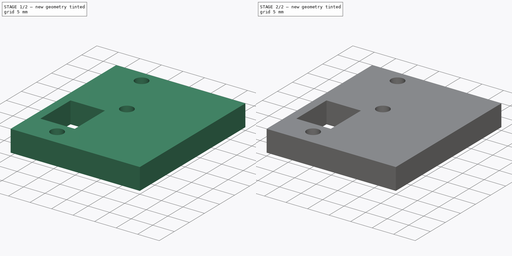
[diagram: build sequence overview — one tinted view per stage of 2, left to right]
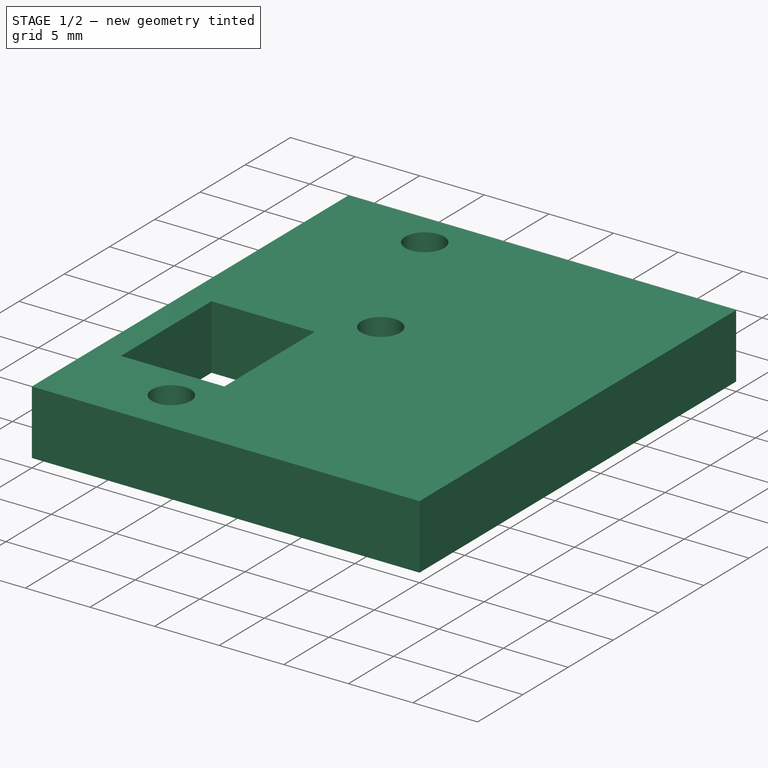
[diagram: stage 1 of 2 — iso view after this stage's code; geometry added in this stage tinted green]
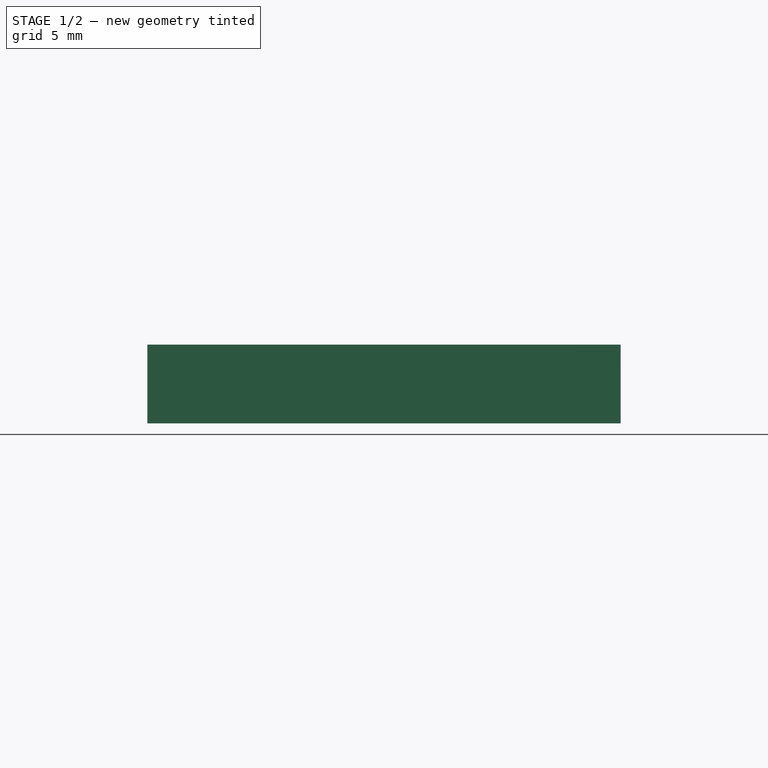
[diagram: stage 1 of 2 — front view after this stage's code; geometry added in this stage tinted green]
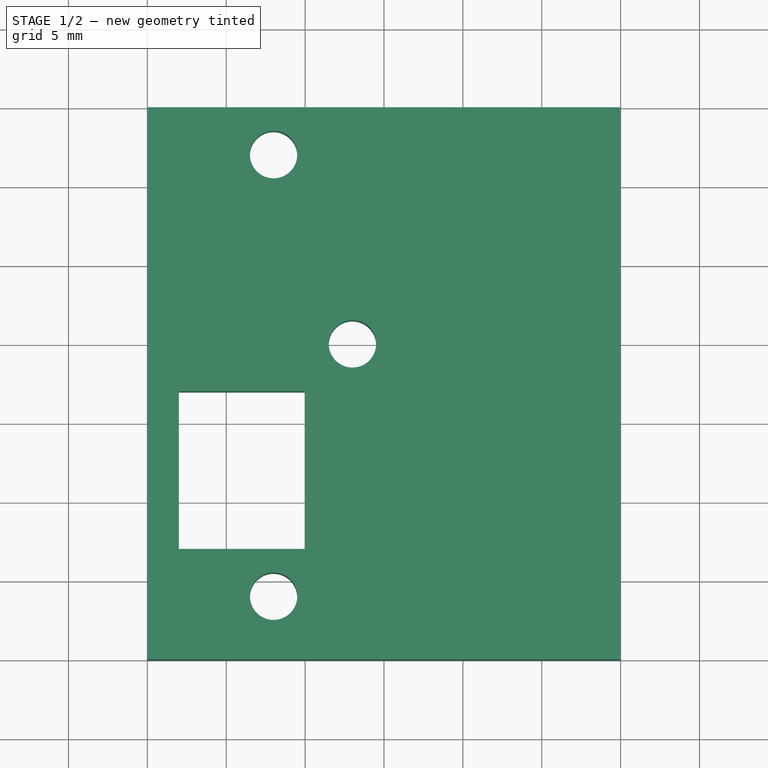
[diagram: stage 1 of 2 — top view after this stage's code; geometry added in this stage tinted green]
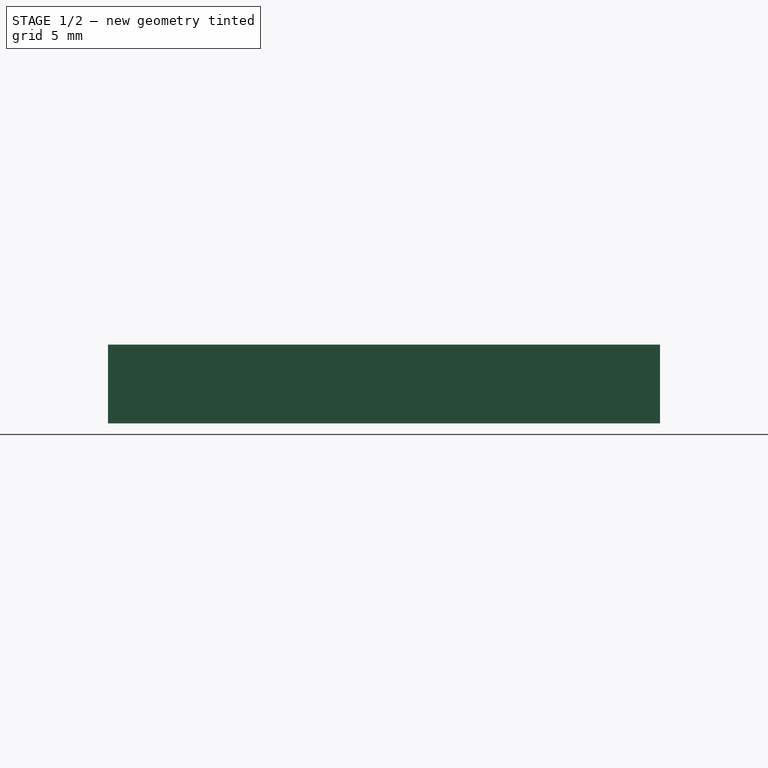
[diagram: stage 1 of 2 — right view after this stage's code; geometry added in this stage tinted green]
FCSTD DOCUMENT  (FreeCAD 0.16R6706 (Git))
Label: Soporte_Razor
License: All rights reserved
LicenseURL: http://en.wikipedia.org/wiki/All_rights_reserved
objects: Sketcher::SketchObject×3, PartDesign::Pocket×2, PartDesign::Pad×1
note: 9 computed .brp shape members not serialized (recipe doc carries the construction recipe); baked Part::Feature solids carry a one-line shape summary decoded from their .brp

FEATURE [Sketcher::SketchObject] Sketch  label="Base"
  sketch-geometry (4):
    g0: LineSegment StartX=0 StartY=35 StartZ=0 EndX=30 EndY=35 EndZ=0
    g1: LineSegment StartX=30 StartY=35 StartZ=0 EndX=30 EndY=0 EndZ=0
    g2: LineSegment StartX=30 StartY=0 StartZ=0 EndX=0 EndY=0 EndZ=0
    g3: LineSegment StartX=0 StartY=0 StartZ=0 EndX=0 EndY=35 EndZ=0
  constraints (11):
    c: Coincident(g0,g1)
    c: Coincident(g1,g2)
    c: Coincident(g2,g3)
    c: Coincident(g3,g0)
    c: Horizontal(g0)
    c: Horizontal(g2)
    c: Vertical(g1)
    c: Vertical(g3)
    c: DistanceX(g0,g0) = 30
    c: DistanceY(g3,g3) = 35
    c: Coincident(g2,g-1)
FEATURE [PartDesign::Pad] Pad
  Length = 5
  Length2 = 100
  Sketch = -> Sketch
  Type = 0
FEATURE [Sketcher::SketchObject] Sketch001  label="Base_Tornillos"
  Placement = pos=(0,0,5) rot=(0,0,1;0rad)
  Support = -> Pad [Face6]
  sketch-geometry (7):
    g0: Circle CenterX=8 CenterY=32 CenterZ=0 NormalX=0 NormalY=0 NormalZ=1 Radius=1.5
    g1: Circle CenterX=8 CenterY=4 CenterZ=0 NormalX=0 NormalY=0 NormalZ=1 Radius=1.5
    g2: LineSegment StartX=2 StartY=17 StartZ=0 EndX=10 EndY=17 EndZ=0
    g3: LineSegment StartX=10 StartY=17 StartZ=0 EndX=10 EndY=7 EndZ=0
    g4: LineSegment StartX=10 StartY=7 StartZ=0 EndX=2 EndY=7 EndZ=0
    g5: LineSegment StartX=2 StartY=7 StartZ=0 EndX=2 EndY=17 EndZ=0
    g6: Circle CenterX=13 CenterY=20 CenterZ=0 NormalX=0 NormalY=0 NormalZ=1 Radius=1.5
  constraints (21):
    c: Radius(g0) = 1.5
    c: Radius(g1) = 1.5
    c: DistanceX(g1,g0) = 0
    c: DistanceY(g1,g0) = 28
    c: DistanceY(g-1,g1) = 4
    c: DistanceX(g1,g-1) = -8
    c: Coincident(g2,g3)
    c: Coincident(g3,g4)
    c: Coincident(g4,g5)
    c: Coincident(g5,g2)
    c: Horizontal(g2)
    c: Horizontal(g4)
    c: Vertical(g3)
    c: Vertical(g5)
    c: DistanceY(g5,g5) = 10
    c: DistanceX(g2,g2) = 8
    c: DistanceX(g4,g-1) = -2
    c: DistanceY(g-1,g4) = 7
    c: Radius(g6) = 1.5
    c: DistanceY(g-1,g6) = 20
    c: DistanceX(g6,g-1) = -13
FEATURE [PartDesign::Pocket] Pocket
  Length = 5
  Sketch = -> Sketch001
  Type = 0
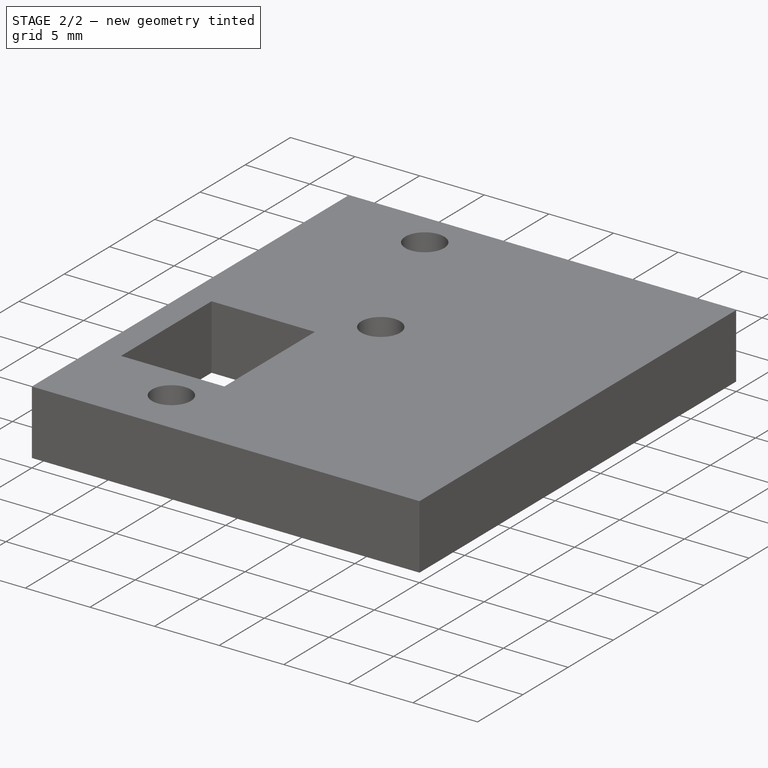
[diagram: stage 2 of 2 — iso view after this stage's code; geometry added in this stage tinted green]
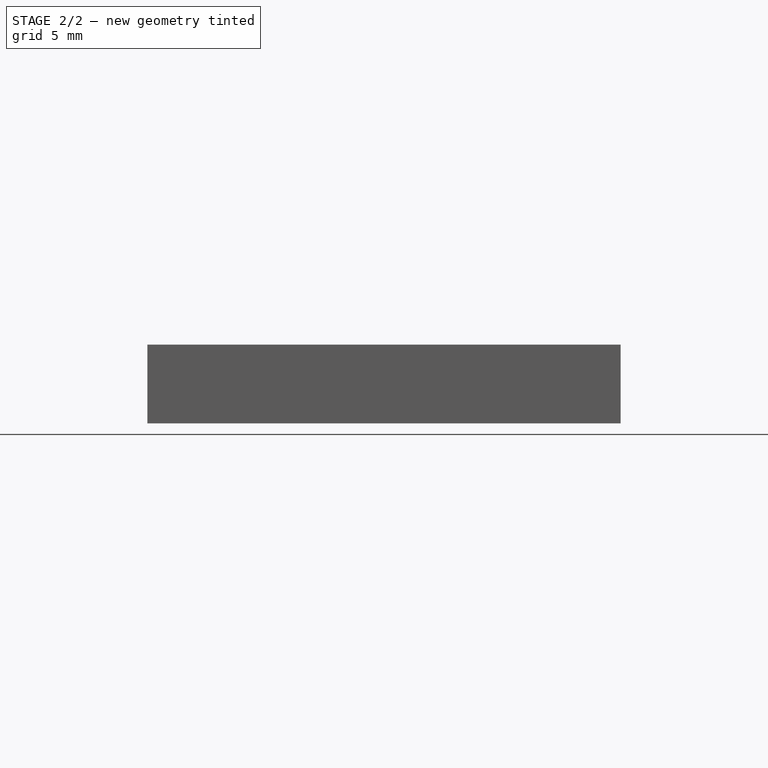
[diagram: stage 2 of 2 — front view after this stage's code; geometry added in this stage tinted green]
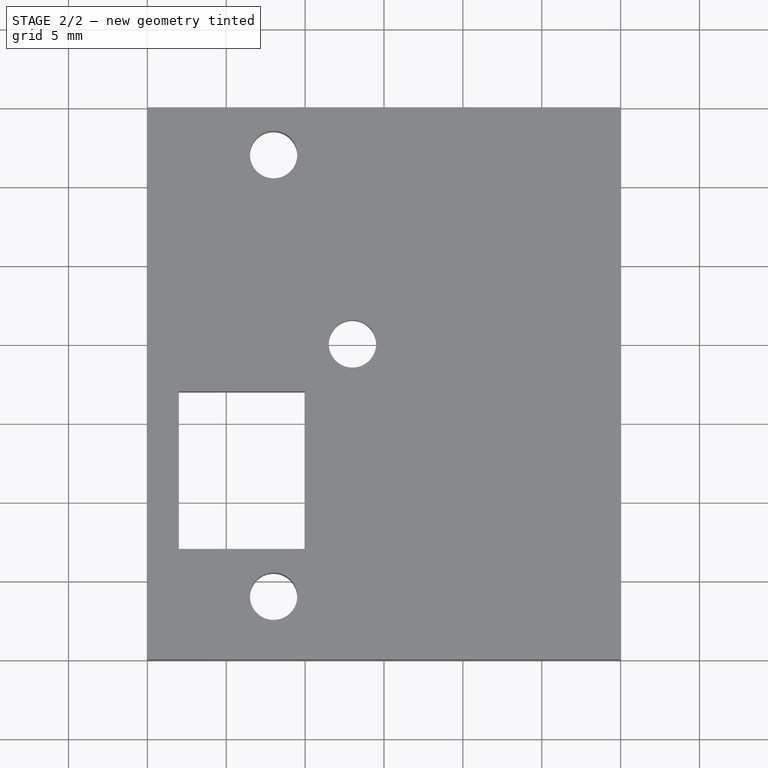
[diagram: stage 2 of 2 — top view after this stage's code; geometry added in this stage tinted green]
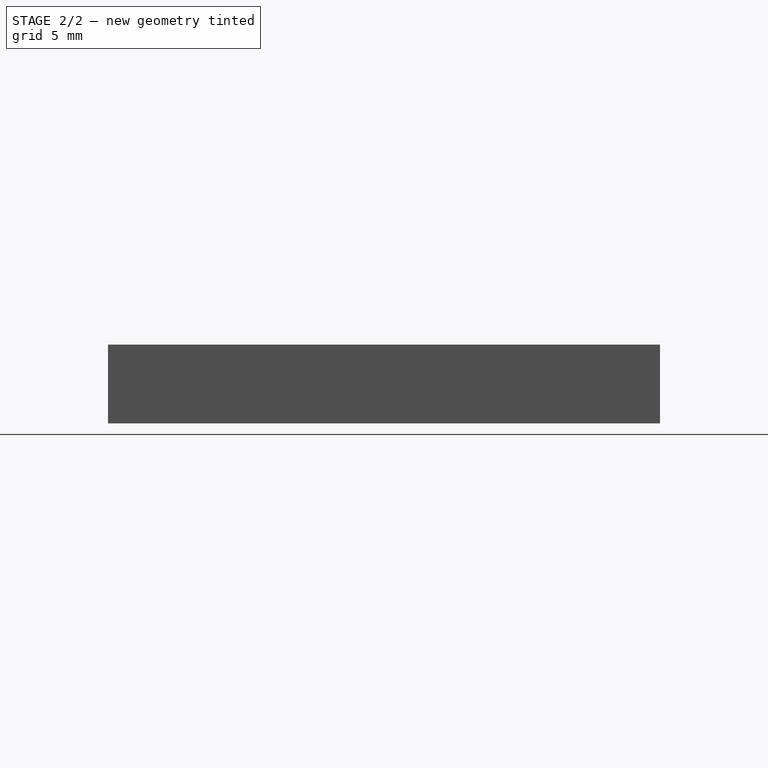
[diagram: stage 2 of 2 — right view after this stage's code; geometry added in this stage tinted green]
FEATURE [Sketcher::SketchObject] Sketch002
  Placement = pos=(0,0,0) rot=(1,0,0;3.14159rad)
  Support = -> Pocket [Face4]
  sketch-geometry (1):
    g0: Circle CenterX=13 CenterY=-20 CenterZ=0 NormalX=0 NormalY=0 NormalZ=1 Radius=2.5
  constraints (3):
    c: Radius(g0) = 2.5
    c: DistanceX(g-1,g0) = 13
    c: DistanceY(g0,g-1) = 20
FEATURE [PartDesign::Pocket] Pocket001
  Length = 2
  Sketch = -> Sketch002
  Type = 0
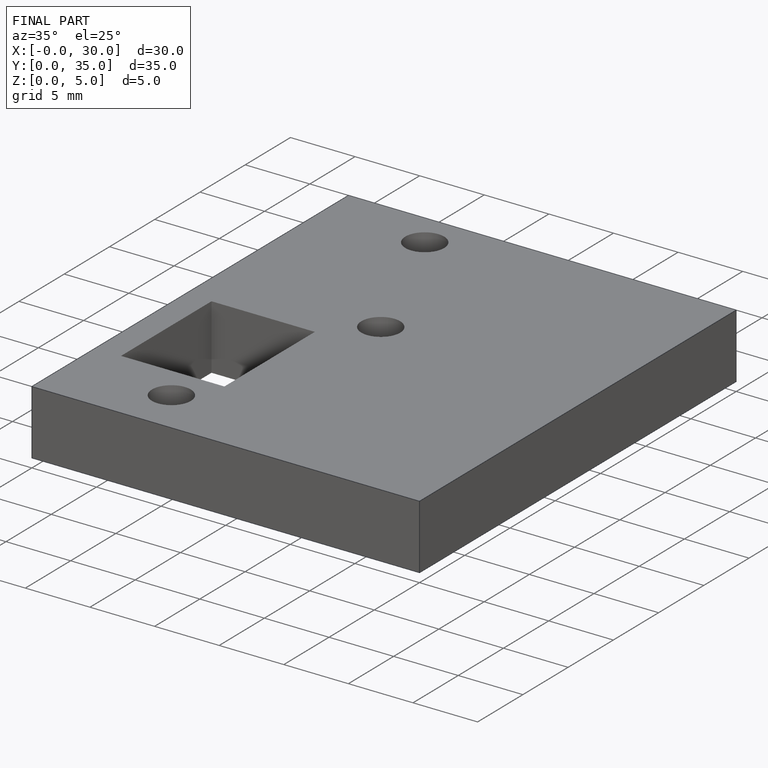
[diagram: finished part — iso view with bounding-box wireframe]
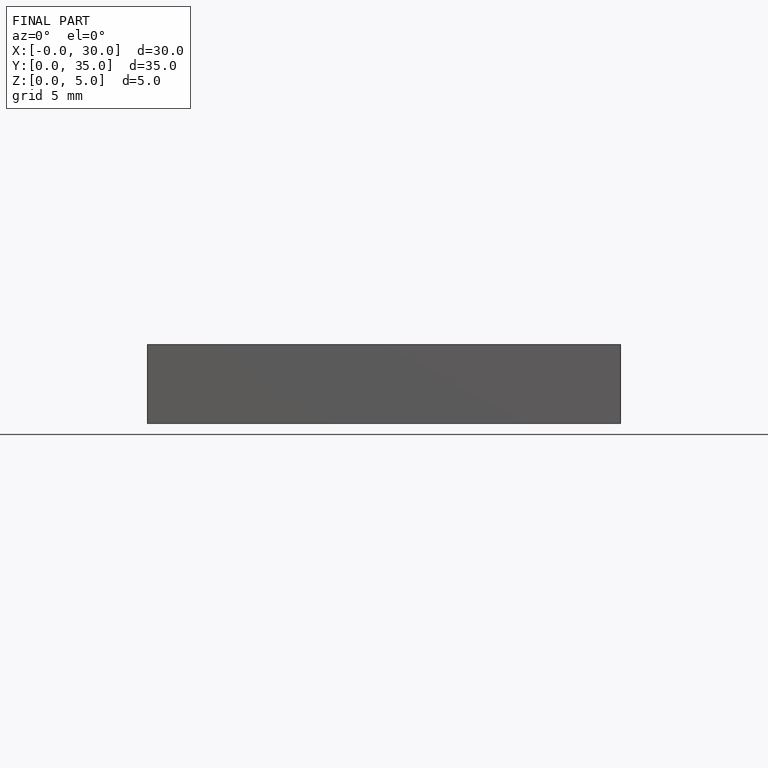
[diagram: finished part — front view with bounding-box wireframe]
